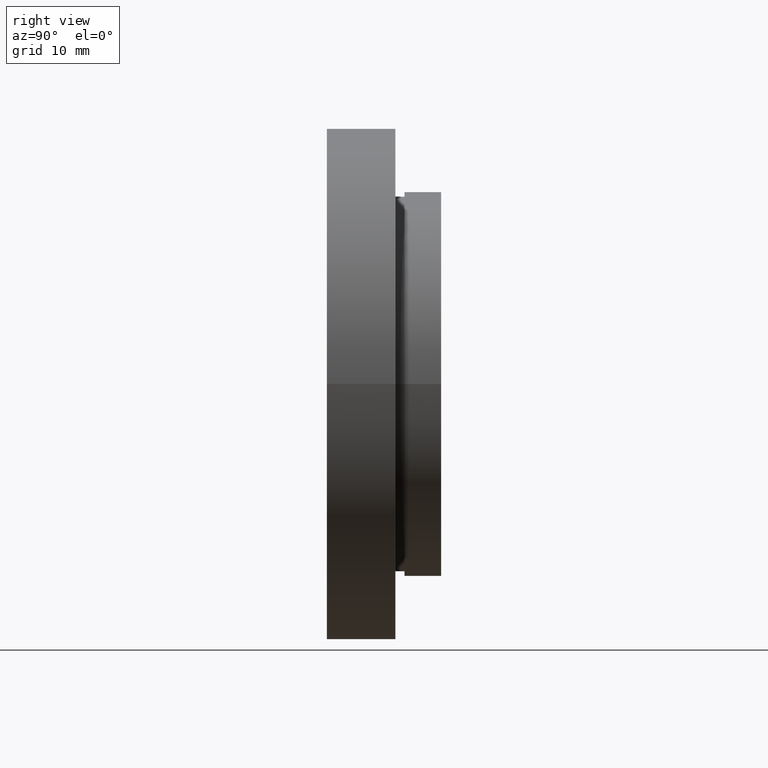
[diagram: clean part render]
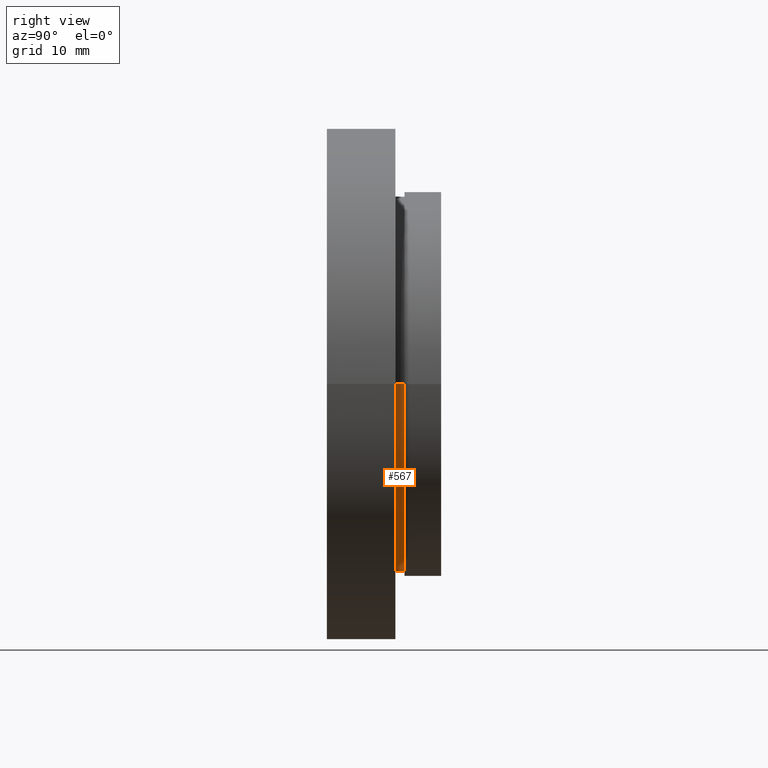
[diagram: same view with one face highlighted and labeled with its STEP entity id]
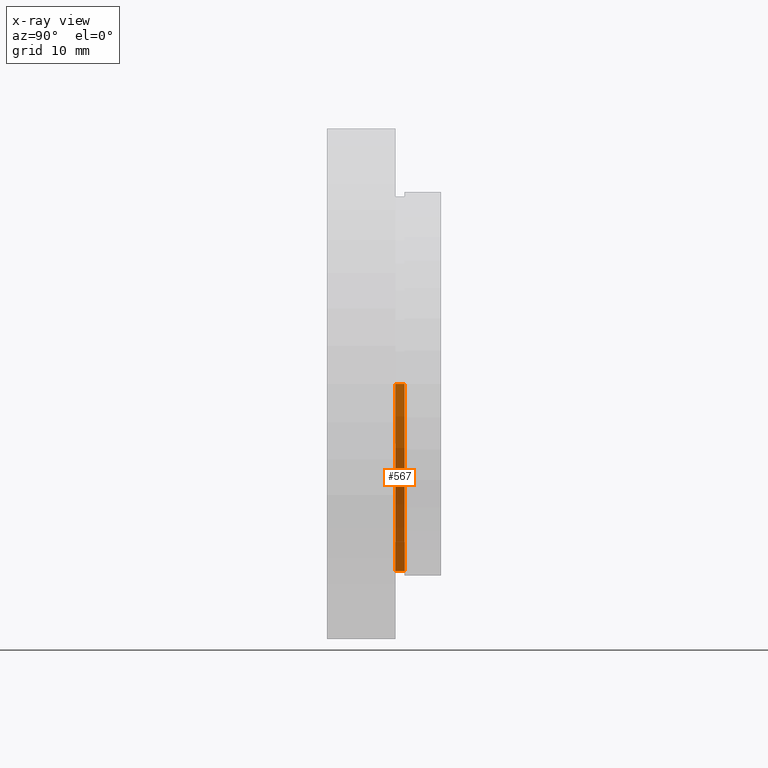
[diagram: x-ray of the same camera — body ghosted, the highlighted face saturated]
A machine part, right view. The second image highlights one B-rep face of the part: STEP entity #567.
The next image is the same camera in x-ray: the body ghosted, the highlighted face saturated — about 0% of this face is hidden behind the body in this view.
In plain terms, the highlighted cylindrical surface (partial cylindrical patch) has radius 20.5 mm, axis along (-0, 1, -0).
Its self-contained STEP definition (entity closure, byte-faithful):
#10 = CARTESIAN_POINT ( 'NONE',  ( -20.50000000000000000, 7.499999999999995600, 0.0000000000000000000 ) ) ;
#16 = CARTESIAN_POINT ( 'NONE',  ( -20.50000000000000000, 8.499999999999996400, 0.0000000000000000000 ) ) ;
#18 = VECTOR ( 'NONE', #617, 1000.000000000000000 ) ;
#19 = EDGE_CURVE ( 'NONE', #191, #394, #35, .T. ) ;
#22 = AXIS2_PLACEMENT_3D ( 'NONE', #215, #449, #157 ) ;
#35 = CIRCLE ( 'NONE', #40, 20.50000000000000000 ) ;
#40 = AXIS2_PLACEMENT_3D ( 'NONE', #611, #432, #388 ) ;
#68 = EDGE_CURVE ( 'NONE', #336, #394, #323, .T. ) ;
#136 = VECTOR ( 'NONE', #212, 1000.000000000000000 ) ;
#151 = VERTEX_POINT ( 'NONE', #596 ) ;
#157 = DIRECTION ( 'NONE',  ( -1.000000000000000000, -1.692413147294446000E-016, 0.0000000000000000000 ) ) ;
#191 = VERTEX_POINT ( 'NONE', #339 ) ;
#212 = DIRECTION ( 'NONE',  ( -1.224646799147351000E-016, 1.000000000000000000, -0.0000000000000000000 ) ) ;
#215 = CARTESIAN_POINT ( 'NONE',  ( 0.0000000000000000000, 16.88601823708207700, 0.0000000000000000000 ) ) ;
#219 = EDGE_CURVE ( 'NONE', #151, #191, #289, .T. ) ;
#231 = AXIS2_PLACEMENT_3D ( 'NONE', #496, #545, #539 ) ;
#289 = LINE ( 'NONE', #452, #18 ) ;
#301 = CARTESIAN_POINT ( 'NONE',  ( -20.50000000000000000, 16.88601823708207300, 0.0000000000000000000 ) ) ;
#305 = EDGE_CURVE ( 'NONE', #151, #336, #579, .T. ) ;
#323 = LINE ( 'NONE', #301, #136 ) ;
#336 = VERTEX_POINT ( 'NONE', #10 ) ;
#339 = CARTESIAN_POINT ( 'NONE',  ( 20.50000000000000000, 8.500000000000000000, 2.510525938252074500E-015 ) ) ;
#388 = DIRECTION ( 'NONE',  ( -1.000000000000000000, -8.462065736472229800E-017, 0.0000000000000000000 ) ) ;
#394 = VERTEX_POINT ( 'NONE', #16 ) ;
#403 = ORIENTED_EDGE ( 'NONE', *, *, #68, .T. ) ;
#432 = DIRECTION ( 'NONE',  ( -1.224646799147351000E-016, 1.000000000000000000, -0.0000000000000000000 ) ) ;
#447 = ORIENTED_EDGE ( 'NONE', *, *, #19, .F. ) ;
#449 = DIRECTION ( 'NONE',  ( -1.224646799147351000E-016, 1.000000000000000000, -0.0000000000000000000 ) ) ;
#452 = CARTESIAN_POINT ( 'NONE',  ( 20.50000000000000000, 16.88601823708208000, 2.510525938252074500E-015 ) ) ;
#463 = CYLINDRICAL_SURFACE ( 'NONE', #22, 20.50000000000000000 ) ;
#471 = EDGE_LOOP ( 'NONE', ( #591, #542, #403, #447 ) ) ;
#496 = CARTESIAN_POINT ( 'NONE',  ( 1.149455719078122700E-015, 7.499999999999998200, 0.0000000000000000000 ) ) ;
#539 = DIRECTION ( 'NONE',  ( -1.000000000000000000, -1.269309860470834500E-016, 0.0000000000000000000 ) ) ;
#542 = ORIENTED_EDGE ( 'NONE', *, *, #305, .T. ) ;
#545 = DIRECTION ( 'NONE',  ( -1.224646799147351000E-016, 1.000000000000000000, -0.0000000000000000000 ) ) ;
#567 = ADVANCED_FACE ( 'NONE', ( #584 ), #463, .T. ) ;
#579 = CIRCLE ( 'NONE', #231, 20.50000000000000000 ) ;
#584 = FACE_OUTER_BOUND ( 'NONE', #471, .T. ) ;
#591 = ORIENTED_EDGE ( 'NONE', *, *, #219, .F. ) ;
#596 = CARTESIAN_POINT ( 'NONE',  ( 20.50000000000000000, 7.500000000000000900, 2.510525938252074500E-015 ) ) ;
#611 = CARTESIAN_POINT ( 'NONE',  ( 1.026991039163387700E-015, 8.499999999999998200, 0.0000000000000000000 ) ) ;
#617 = DIRECTION ( 'NONE',  ( -1.224646799147351000E-016, 1.000000000000000000, -0.0000000000000000000 ) ) ;